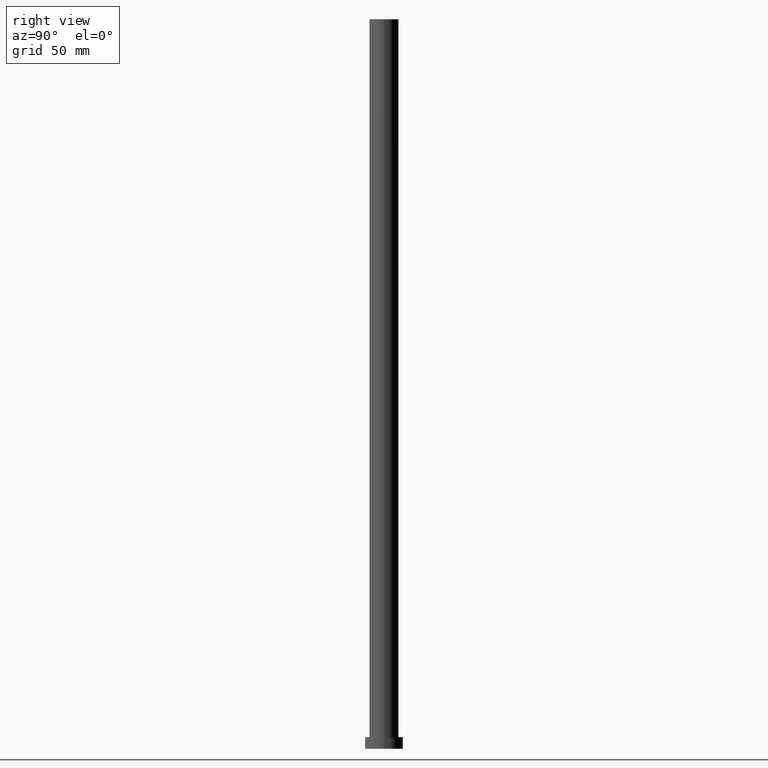
[diagram: clean part render]
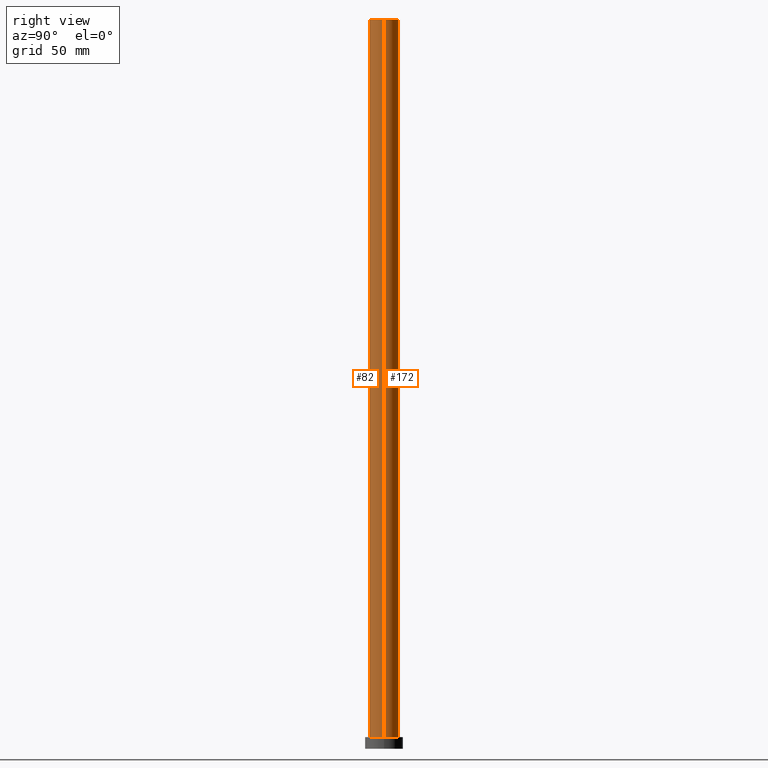
[diagram: same view with one multi-face feature highlighted, each face labeled with its STEP entity id]
A machine part, right view. The highlighted faces form ONE feature: a constant-radius fillet chain: 2 tangent blend faces with common blend radius 10 mm. The faces share edges in the B-rep.
Their STEP definitions:
[1] entity #82 (Cylinder):
#1 = CIRCLE ( 'NONE', #34, 10.00000000000000000 ) ;
#2 = EDGE_CURVE ( 'NONE', #58, #77, #112, .T. ) ;
#3 = CARTESIAN_POINT ( 'NONE',  ( 10.00000000000000000, 1.224646799147353256E-15, 8.000000000000000000 ) ) ;
#6 = LINE ( 'NONE', #182, #124 ) ;
#10 = EDGE_LOOP ( 'NONE', ( #36, #195, #115, #188 ) ) ;
#29 = VECTOR ( 'NONE', #135, 1000.000000000000000 ) ;
#34 = AXIS2_PLACEMENT_3D ( 'NONE', #225, #44, #238 ) ;
#36 = ORIENTED_EDGE ( 'NONE', *, *, #186, .F. ) ;
#44 = DIRECTION ( 'NONE',  ( 0.000000000000000000, 0.000000000000000000, 1.000000000000000000 ) ) ;
#58 = VERTEX_POINT ( 'NONE', #73 ) ;
#68 = DIRECTION ( 'NONE',  ( 0.000000000000000000, 0.000000000000000000, 1.000000000000000000 ) ) ;
#73 = CARTESIAN_POINT ( 'NONE',  ( -10.00000000000000000, 0.000000000000000000, 8.000000000000000000 ) ) ;
#77 = VERTEX_POINT ( 'NONE', #3 ) ;
#78 = CARTESIAN_POINT ( 'NONE',  ( 0.000000000000000000, 0.000000000000000000, 500.0000000000000000 ) ) ;
#82 = ADVANCED_FACE ( 'NONE', ( #113 ), #156, .T. ) ;
#83 = CARTESIAN_POINT ( 'NONE',  ( -10.00000000000000000, 0.000000000000000000, 500.0000000000000000 ) ) ;
#93 = DIRECTION ( 'NONE',  ( -0.000000000000000000, -0.000000000000000000, -1.000000000000000000 ) ) ;
#99 = DIRECTION ( 'NONE',  ( -0.000000000000000000, -0.000000000000000000, -1.000000000000000000 ) ) ;
#103 = EDGE_CURVE ( 'NONE', #191, #58, #217, .T. ) ;
#112 = CIRCLE ( 'NONE', #251, 10.00000000000000000 ) ;
#113 = FACE_OUTER_BOUND ( 'NONE', #10, .T. ) ;
#115 = ORIENTED_EDGE ( 'NONE', *, *, #103, .T. ) ;
#121 = AXIS2_PLACEMENT_3D ( 'NONE', #78, #93, #255 ) ;
#124 = VECTOR ( 'NONE', #99, 1000.000000000000000 ) ;
#135 = DIRECTION ( 'NONE',  ( -0.000000000000000000, -0.000000000000000000, -1.000000000000000000 ) ) ;
#150 = DIRECTION ( 'NONE',  ( 1.000000000000000000, 0.000000000000000000, 0.000000000000000000 ) ) ;
#156 = CYLINDRICAL_SURFACE ( 'NONE', #121, 10.00000000000000000 ) ;
#181 = EDGE_CURVE ( 'NONE', #191, #211, #1, .T. ) ;
#182 = CARTESIAN_POINT ( 'NONE',  ( 10.00000000000000000, 1.224646799147353256E-15, 500.0000000000000000 ) ) ;
#186 = EDGE_CURVE ( 'NONE', #211, #77, #6, .T. ) ;
#188 = ORIENTED_EDGE ( 'NONE', *, *, #2, .T. ) ;
#191 = VERTEX_POINT ( 'NONE', #83 ) ;
#194 = CARTESIAN_POINT ( 'NONE',  ( -10.00000000000000000, 0.000000000000000000, 500.0000000000000000 ) ) ;
#195 = ORIENTED_EDGE ( 'NONE', *, *, #181, .F. ) ;
#211 = VERTEX_POINT ( 'NONE', #241 ) ;
#217 = LINE ( 'NONE', #194, #29 ) ;
#225 = CARTESIAN_POINT ( 'NONE',  ( 0.000000000000000000, 0.000000000000000000, 500.0000000000000000 ) ) ;
#238 = DIRECTION ( 'NONE',  ( 1.000000000000000000, 0.000000000000000000, 0.000000000000000000 ) ) ;
#241 = CARTESIAN_POINT ( 'NONE',  ( 10.00000000000000000, 1.224646799147353256E-15, 500.0000000000000000 ) ) ;
#246 = CARTESIAN_POINT ( 'NONE',  ( 0.000000000000000000, 0.000000000000000000, 8.000000000000000000 ) ) ;
#251 = AXIS2_PLACEMENT_3D ( 'NONE', #246, #68, #150 ) ;
#255 = DIRECTION ( 'NONE',  ( -1.000000000000000000, 0.000000000000000000, 0.000000000000000000 ) ) ;
[2] entity #172 (Cylinder):
#3 = CARTESIAN_POINT ( 'NONE',  ( 10.00000000000000000, 1.224646799147353256E-15, 8.000000000000000000 ) ) ;
#5 = EDGE_LOOP ( 'NONE', ( #28, #63, #41, #222 ) ) ;
#6 = LINE ( 'NONE', #182, #124 ) ;
#9 = CARTESIAN_POINT ( 'NONE',  ( 0.000000000000000000, 0.000000000000000000, 500.0000000000000000 ) ) ;
#28 = ORIENTED_EDGE ( 'NONE', *, *, #247, .F. ) ;
#29 = VECTOR ( 'NONE', #135, 1000.000000000000000 ) ;
#31 = CYLINDRICAL_SURFACE ( 'NONE', #167, 10.00000000000000000 ) ;
#41 = ORIENTED_EDGE ( 'NONE', *, *, #114, .T. ) ;
#49 = CARTESIAN_POINT ( 'NONE',  ( 0.000000000000000000, 0.000000000000000000, 8.000000000000000000 ) ) ;
#50 = CIRCLE ( 'NONE', #57, 10.00000000000000000 ) ;
#56 = DIRECTION ( 'NONE',  ( 0.000000000000000000, 0.000000000000000000, 1.000000000000000000 ) ) ;
#57 = AXIS2_PLACEMENT_3D ( 'NONE', #49, #254, #116 ) ;
#58 = VERTEX_POINT ( 'NONE', #73 ) ;
#60 = AXIS2_PLACEMENT_3D ( 'NONE', #198, #56, #223 ) ;
#63 = ORIENTED_EDGE ( 'NONE', *, *, #186, .T. ) ;
#73 = CARTESIAN_POINT ( 'NONE',  ( -10.00000000000000000, 0.000000000000000000, 8.000000000000000000 ) ) ;
#77 = VERTEX_POINT ( 'NONE', #3 ) ;
#83 = CARTESIAN_POINT ( 'NONE',  ( -10.00000000000000000, 0.000000000000000000, 500.0000000000000000 ) ) ;
#99 = DIRECTION ( 'NONE',  ( -0.000000000000000000, -0.000000000000000000, -1.000000000000000000 ) ) ;
#103 = EDGE_CURVE ( 'NONE', #191, #58, #217, .T. ) ;
#110 = CIRCLE ( 'NONE', #60, 10.00000000000000000 ) ;
#114 = EDGE_CURVE ( 'NONE', #77, #58, #50, .T. ) ;
#116 = DIRECTION ( 'NONE',  ( 1.000000000000000000, 0.000000000000000000, 0.000000000000000000 ) ) ;
#119 = DIRECTION ( 'NONE',  ( -1.000000000000000000, 0.000000000000000000, 0.000000000000000000 ) ) ;
#122 = DIRECTION ( 'NONE',  ( -0.000000000000000000, -0.000000000000000000, -1.000000000000000000 ) ) ;
#124 = VECTOR ( 'NONE', #99, 1000.000000000000000 ) ;
#135 = DIRECTION ( 'NONE',  ( -0.000000000000000000, -0.000000000000000000, -1.000000000000000000 ) ) ;
#136 = FACE_OUTER_BOUND ( 'NONE', #5, .T. ) ;
#167 = AXIS2_PLACEMENT_3D ( 'NONE', #9, #122, #119 ) ;
#172 = ADVANCED_FACE ( 'NONE', ( #136 ), #31, .T. ) ;
#182 = CARTESIAN_POINT ( 'NONE',  ( 10.00000000000000000, 1.224646799147353256E-15, 500.0000000000000000 ) ) ;
#186 = EDGE_CURVE ( 'NONE', #211, #77, #6, .T. ) ;
#191 = VERTEX_POINT ( 'NONE', #83 ) ;
#194 = CARTESIAN_POINT ( 'NONE',  ( -10.00000000000000000, 0.000000000000000000, 500.0000000000000000 ) ) ;
#198 = CARTESIAN_POINT ( 'NONE',  ( 0.000000000000000000, 0.000000000000000000, 500.0000000000000000 ) ) ;
#211 = VERTEX_POINT ( 'NONE', #241 ) ;
#217 = LINE ( 'NONE', #194, #29 ) ;
#222 = ORIENTED_EDGE ( 'NONE', *, *, #103, .F. ) ;
#223 = DIRECTION ( 'NONE',  ( 1.000000000000000000, 0.000000000000000000, 0.000000000000000000 ) ) ;
#241 = CARTESIAN_POINT ( 'NONE',  ( 10.00000000000000000, 1.224646799147353256E-15, 500.0000000000000000 ) ) ;
#247 = EDGE_CURVE ( 'NONE', #211, #191, #110, .T. ) ;
#254 = DIRECTION ( 'NONE',  ( 0.000000000000000000, 0.000000000000000000, 1.000000000000000000 ) ) ;